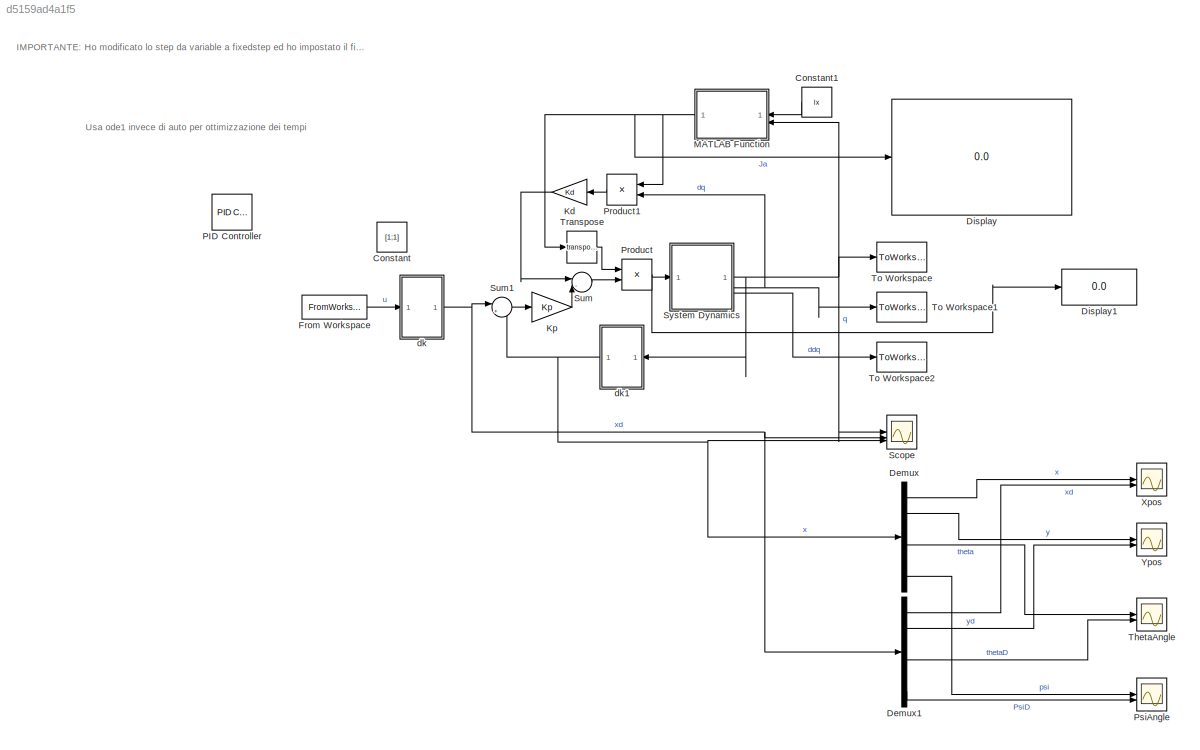
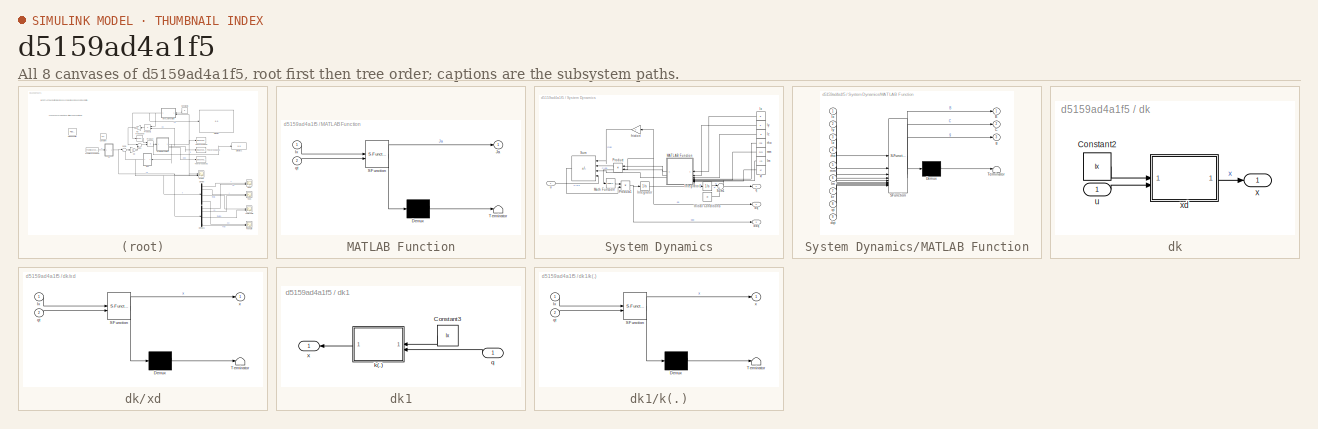
[diagram: thumbnail index - all 8 canvases of the model, root first then tree order]
MODEL slx_d5159ad4a1f5
KIND model
CONFIG AbsTol = auto
CONFIG EnableMultiTasking = off
CONFIG FixedStep = t_step
CONFIG MaxStep = auto
CONFIG MinStep = auto
CONFIG RelTol = 1e-3
CONFIG SampleTimeConstraint = Unconstrained
CONFIG SolverName = ode1
CONFIG StartTime = 0.0
CONFIG StopTime = Tf
BLOCK [Constant] Constant
  Value = [1;1]
BLOCK [Constant] Constant1
  Value = lx
BLOCK [Demux] Demux
  Outputs = 6
BLOCK [Demux] Demux1
  Outputs = 6
BLOCK [Display] Display
  Decimation = 1
BLOCK [Display] Display1
  Decimation = 1
BLOCK [FromWorkspace] From Workspace
  OutDataTypeStr = double
  SampleTime = t_step
  VariableName = [t', u]
BLOCK [Gain] Kd
  Gain = Kd
  Multiplication = Matrix(K*u)
BLOCK [Gain] Kp
  Gain = Kp
  Multiplication = Matrix(K*u)
BLOCK [SubSystem] MATLAB Function
  ErrorFcn = Stateflow.Translate.translate
  LibrarySourceBlock = simulink/User-Defined\nFunctions/MATLAB Function
  PermitHierarchicalResolution = ExplicitOnly
  SFBlockType = MATLAB Function
  TreatAsAtomicUnit = on
BLOCK [Demux] MATLAB Function/ Demux 
  Outputs = 1
BLOCK [S-Function] MATLAB Function/ SFunction 
  EnableBusSupport = on
  FunctionName = sf_sfun
  PortCounts = [2 2]
  SFcnIsStateOwnerBlock = off
  SFunctionDeploymentMode = off
  Tag = Stateflow S-Function 1
BLOCK [Terminator] MATLAB Function/ Terminator 
BLOCK [Outport] MATLAB Function/Ja
BLOCK [Inport] MATLAB Function/lx
BLOCK [Inport] MATLAB Function/qt
  Port = 2
BLOCK [Reference] PID Controller  REF=slpidlib/PID Controller
  LibrarySourceBlock = simulink/Continuous/PID Controller
  SourceBlock = slpidlib/PID Controller
  SourceType = PID 1dof
BLOCK [Product] Product
  Multiplication = Matrix(*)
BLOCK [Product] Product1
  Multiplication = Matrix(*)
BLOCK [Scope] PsiAngle
  Floating = off
  NumInputPorts = 2
  ScopeSpecificationString = Simulink.scopes.TimeScopeBlockCfg('CurrentConfiguration', extmgr.ConfigurationSet(extmgr.Configuration('Core','General UI',true),extmgr.Configuration('Core','Source UI',true),extmgr.Configuration('Sources','WiredSimulink',true,'DataLoggingVariableName','ScopeData4'),extmgr.Configuration('Visuals','Time Domain',true,'SerializedDisplays',{struct('MinYLimReal','-1.00000','MaxYLimReal','1.00000','YLab...<+1419ch>
BLOCK [Scope] Scope
  Floating = off
  NumInputPorts = 3
  ScopeSpecificationString = Simulink.scopes.TimeScopeBlockCfg('CurrentConfiguration', extmgr.ConfigurationSet(extmgr.Configuration('Core','General UI',true),extmgr.Configuration('Core','Source UI',true),extmgr.Configuration('Sources','WiredSimulink',true),extmgr.Configuration('Visuals','Time Domain',true,'SerializedDisplays',{struct('MinYLimReal','-3.53429','MaxYLimReal','0.3927','YLabelReal','','MinYLimMag','0.00000','MaxYL...<+1807ch>
BLOCK [Sum] Sum
  Inputs = |-+
BLOCK [Sum] Sum1
  Inputs = |+-
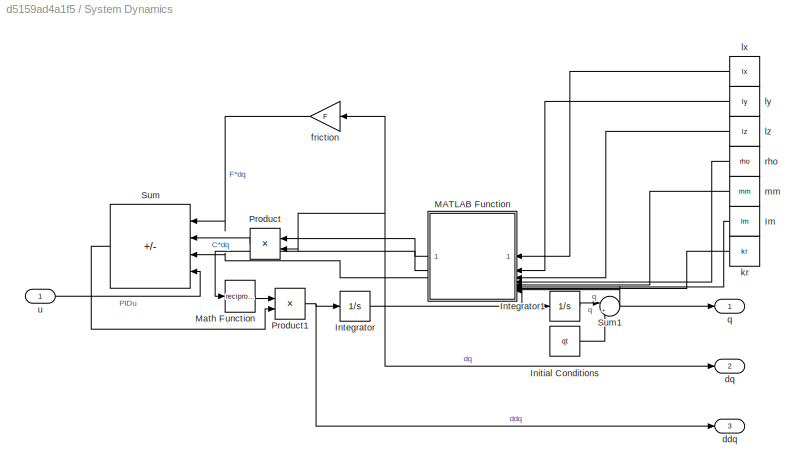
BLOCK [SubSystem] System Dynamics
BLOCK [Constant] System Dynamics/Im
  Value = Im
BLOCK [Constant] System Dynamics/Initial Conditions
  Value = qt
BLOCK [Integrator] System Dynamics/Integrator
  InitialCondition = [0; 0]
BLOCK [Integrator] System Dynamics/Integrator1
  InitialCondition = [0;0]
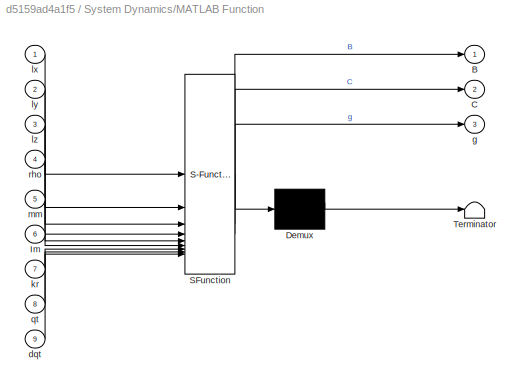
BLOCK [SubSystem] System Dynamics/MATLAB Function
  ErrorFcn = Stateflow.Translate.translate
  LibrarySourceBlock = simulink/User-Defined\nFunctions/MATLAB Function
  PermitHierarchicalResolution = ExplicitOnly
  SFBlockType = MATLAB Function
  TreatAsAtomicUnit = on
BLOCK [Demux] System Dynamics/MATLAB Function/ Demux 
  Outputs = 1
BLOCK [S-Function] System Dynamics/MATLAB Function/ SFunction 
  EnableBusSupport = on
  FunctionName = sf_sfun
  PortCounts = [9 4]
  SFcnIsStateOwnerBlock = off
  SFunctionDeploymentMode = off
  Tag = Stateflow S-Function 2
BLOCK [Terminator] System Dynamics/MATLAB Function/ Terminator 
BLOCK [Outport] System Dynamics/MATLAB Function/B
BLOCK [Outport] System Dynamics/MATLAB Function/C
  Port = 2
BLOCK [Inport] System Dynamics/MATLAB Function/Im
  Port = 6
BLOCK [Inport] System Dynamics/MATLAB Function/dqt
  Port = 9
BLOCK [Outport] System Dynamics/MATLAB Function/g
  Port = 3
BLOCK [Inport] System Dynamics/MATLAB Function/kr
  Port = 7
BLOCK [Inport] System Dynamics/MATLAB Function/lx
BLOCK [Inport] System Dynamics/MATLAB Function/ly
  Port = 2
BLOCK [Inport] System Dynamics/MATLAB Function/lz
  Port = 3
BLOCK [Inport] System Dynamics/MATLAB Function/mm
  Port = 5
BLOCK [Inport] System Dynamics/MATLAB Function/qt
  Port = 8
BLOCK [Inport] System Dynamics/MATLAB Function/rho
  Port = 4
BLOCK [Math] System Dynamics/Math Function
  Operator = reciprocal
BLOCK [Product] System Dynamics/Product
  Multiplication = Matrix(*)
BLOCK [Product] System Dynamics/Product1
  Multiplication = Matrix(*)
BLOCK [Sum] System Dynamics/Sum
  IconShape = rectangular
  Inputs = |---+
BLOCK [Sum] System Dynamics/Sum1
  Inputs = |++
BLOCK [Outport] System Dynamics/ddq
  Port = 3
BLOCK [Outport] System Dynamics/dq
  Port = 2
BLOCK [Gain] System Dynamics/friction
  Gain = F
  Multiplication = Matrix(K*u)
BLOCK [Constant] System Dynamics/kr
  Value = kr
BLOCK [Constant] System Dynamics/lx
  Value = lx
BLOCK [Constant] System Dynamics/ly
  Value = ly
BLOCK [Constant] System Dynamics/lz
  Value = lz
BLOCK [Constant] System Dynamics/mm
  Value = mm
BLOCK [Outport] System Dynamics/q
BLOCK [Constant] System Dynamics/rho
  Value = rho
BLOCK [Inport] System Dynamics/u
BLOCK [Scope] ThetaAngle
  Floating = off
  NumInputPorts = 2
  ScopeSpecificationString = Simulink.scopes.TimeScopeBlockCfg('CurrentConfiguration', extmgr.ConfigurationSet(extmgr.Configuration('Core','General UI',true),extmgr.Configuration('Core','Source UI',true),extmgr.Configuration('Sources','WiredSimulink',true,'DataLoggingVariableName','ScopeData3'),extmgr.Configuration('Visuals','Time Domain',true,'SerializedDisplays',{struct('MinYLimReal','-3.55967','MaxYLimReal','0.62112','YLab...<+1420ch>
BLOCK [ToWorkspace] To Workspace
  MaxDataPoints = inf
  SampleTime = -1
  Save2DSignal = 2-D array (concatenate along first dimension)
  VariableName = q
BLOCK [ToWorkspace] To Workspace1
  MaxDataPoints = inf
  SampleTime = -1
  Save2DSignal = 2-D array (concatenate along first dimension)
  VariableName = dq
BLOCK [ToWorkspace] To Workspace2
  MaxDataPoints = inf
  SampleTime = -1
  Save2DSignal = 2-D array (concatenate along first dimension)
  VariableName = ddq
BLOCK [Math] Transpose
  Operator = transpose
BLOCK [Scope] Xpos
  Floating = off
  NumInputPorts = 2
  ScopeSpecificationString = Simulink.scopes.TimeScopeBlockCfg('CurrentConfiguration', extmgr.ConfigurationSet(extmgr.Configuration('Core','General UI',true),extmgr.Configuration('Core','Source UI',true),extmgr.Configuration('Sources','WiredSimulink',true,'DataLoggingVariableName','ScopeData1'),extmgr.Configuration('Visuals','Time Domain',true,'SerializedDisplays',{struct('MinYLimReal','-0.26024','MaxYLimReal','0.34212','YLab...<+1432ch>
BLOCK [Scope] Ypos
  Floating = off
  NumInputPorts = 2
  ScopeSpecificationString = Simulink.scopes.TimeScopeBlockCfg('CurrentConfiguration', extmgr.ConfigurationSet(extmgr.Configuration('Core','General UI',true),extmgr.Configuration('Core','Source UI',true),extmgr.Configuration('Sources','WiredSimulink',true,'DataLoggingVariableName','ScopeData2'),extmgr.Configuration('Visuals','Time Domain',true,'SerializedDisplays',{struct('MinYLimReal','-0.45034','MaxYLimReal','0.27226','YLab...<+1412ch>
BLOCK [SubSystem] dk
BLOCK [Constant] dk/Constant2
  Value = lx
BLOCK [Inport] dk/u
BLOCK [Outport] dk/x
BLOCK [SubSystem] dk/xd
  ErrorFcn = Stateflow.Translate.translate
  LibrarySourceBlock = simulink/User-Defined\nFunctions/MATLAB Function
  PermitHierarchicalResolution = ExplicitOnly
  SFBlockType = MATLAB Function
  TreatAsAtomicUnit = on
BLOCK [Demux] dk/xd/ Demux 
  Outputs = 1
BLOCK [S-Function] dk/xd/ SFunction 
  EnableBusSupport = on
  FunctionName = sf_sfun
  PortCounts = [2 2]
  SFcnIsStateOwnerBlock = off
  SFunctionDeploymentMode = off
  Tag = Stateflow S-Function 4
BLOCK [Terminator] dk/xd/ Terminator 
BLOCK [Inport] dk/xd/lx
BLOCK [Inport] dk/xd/qt
  Port = 2
BLOCK [Outport] dk/xd/x
BLOCK [SubSystem] dk1
BLOCK [Constant] dk1/Constant3
  Value = lx
BLOCK [SubSystem] dk1/k(.)
  ErrorFcn = Stateflow.Translate.translate
  LibrarySourceBlock = simulink/User-Defined\nFunctions/MATLAB Function
  PermitHierarchicalResolution = ExplicitOnly
  SFBlockType = MATLAB Function
  TreatAsAtomicUnit = on
BLOCK [Demux] dk1/k(.)/ Demux 
  Outputs = 1
BLOCK [S-Function] dk1/k(.)/ SFunction 
  EnableBusSupport = on
  FunctionName = sf_sfun
  PortCounts = [2 2]
  SFcnIsStateOwnerBlock = off
  SFunctionDeploymentMode = off
  Tag = Stateflow S-Function 3
BLOCK [Terminator] dk1/k(.)/ Terminator 
BLOCK [Inport] dk1/k(.)/lx
BLOCK [Inport] dk1/k(.)/qt
  Port = 2
BLOCK [Outport] dk1/k(.)/x
BLOCK [Inport] dk1/q
BLOCK [Outport] dk1/x
ANNOTATION (root): IMPORTANTE: Ho modificato lo step da variable a fixedstep ed ho impostato il fixed step size a t_step
ANNOTATION (root): Usa ode1 invece di auto per ottimizzazione dei tempi
LINE Constant1:1 -> MATLAB Function:1
LINE Demux1:1 -> Xpos:2
LINE Demux1:2 -> Ypos:2
LINE Demux1:4 -> ThetaAngle:2
LINE Demux1:6 -> PsiAngle:2
LINE Demux:1 -> Xpos:1
LINE Demux:2 -> Ypos:1
LINE Demux:4 -> ThetaAngle:1
LINE Demux:6 -> PsiAngle:1
LINE From Workspace:1 -> dk:1
LINE Kd:1 -> Sum:1
LINE Kp:1 -> Sum:2
NET MATLAB Function:1 -> Display:1, Product1:1, Transpose:1
LINE Product1:1 -> Kd:1
NET Product:1 -> Display1:1, System Dynamics:1
LINE Sum1:1 -> Kp:1
LINE Sum:1 -> Product:2
LINE System Dynamics/Im:1 -> System Dynamics/MATLAB Function:6
LINE System Dynamics/Initial Conditions:1 -> System Dynamics/Sum1:2
LINE System Dynamics/Integrator1:1 -> System Dynamics/Sum1:1
NET System Dynamics/Integrator:1 -> System Dynamics/Integrator1:1, System Dynamics/MATLAB Function:9, System Dynamics/Product:2, System Dynamics/dq:1, System Dynamics/friction:1
LINE System Dynamics/MATLAB Function:1 -> System Dynamics/Math Function:1
LINE System Dynamics/MATLAB Function:2 -> System Dynamics/Product:1
LINE System Dynamics/MATLAB Function:3 -> System Dynamics/Sum:3
LINE System Dynamics/Math Function:1 -> System Dynamics/Product1:1
NET System Dynamics/Product1:1 -> System Dynamics/Integrator:1, System Dynamics/ddq:1
LINE System Dynamics/Product:1 -> System Dynamics/Sum:2
NET System Dynamics/Sum1:1 -> System Dynamics/MATLAB Function:8, System Dynamics/q:1
LINE System Dynamics/Sum:1 -> System Dynamics/Product1:2
LINE System Dynamics/friction:1 -> System Dynamics/Sum:1
LINE System Dynamics/kr:1 -> System Dynamics/MATLAB Function:7
LINE System Dynamics/lx:1 -> System Dynamics/MATLAB Function:1
LINE System Dynamics/ly:1 -> System Dynamics/MATLAB Function:2
LINE System Dynamics/lz:1 -> System Dynamics/MATLAB Function:3
LINE System Dynamics/mm:1 -> System Dynamics/MATLAB Function:5
LINE System Dynamics/rho:1 -> System Dynamics/MATLAB Function:4
LINE System Dynamics/u:1 -> System Dynamics/Sum:4
NET System Dynamics:1 -> MATLAB Function:2, Scope:1, To Workspace:1, dk1:1
NET System Dynamics:2 -> Product1:2, To Workspace1:1
LINE System Dynamics:3 -> To Workspace2:1
LINE Transpose:1 -> Product:1
LINE dk/Constant2:1 -> dk/xd:1
LINE dk/u:1 -> dk/xd:2
LINE dk/xd:1 -> dk/x:1
LINE dk1/Constant3:1 -> dk1/k(.):1
LINE dk1/k(.):1 -> dk1/x:1
LINE dk1/q:1 -> dk1/k(.):2
NET dk1:1 -> Demux:1, Scope:3, Sum1:2
NET dk:1 -> Demux1:1, Scope:2, Sum1:1
note: NET lines group one-source signal fan-out (src -> all destinations, sorted); 1:1 wires keep LINE
CHART MATLAB Function states=1 transitions=1
  STATE_LABEL 'eML_blk_kernel()'
  STATE_LABEL 'SCRIPT:\nfunction Ja = fcn(lx, qt)\ncoder.extrinsic("jacobianFnc");\nJa = zeros(6,2);\nJa = jacobianFnc(lx, qt);\n'
CHART System Dynamics/MATLAB Function states=1 transitions=1
  STATE_LABEL 'eML_blk_kernel()'
  STATE_LABEL "SCRIPT:\nfunction [B, C, g] = fcn(lx, ly, lz, rho, mm, Im, kr, qt, dqt)\ncoder.extrinsic('generateBCg');\nB = zeros(2);\nC = zeros(2);\ng = zeros(2,1);\n[B, C, g] = generateBCg(lx, ly, lz, rho, mm, Im, kr, qt, dqt);"
CHART dk1/k(.) states=1 transitions=1
  STATE_LABEL 'eML_blk_kernel()'
  STATE_LABEL 'SCRIPT:\nfunction x = fcn(lx, qt)\ncoder.extrinsic("directkinematics")\nx = zeros(6,1);\nx = directkinematics(lx, qt);'
CHART dk/xd states=1 transitions=1
  STATE_LABEL 'eML_blk_kernel()'
  STATE_LABEL 'SCRIPT:\nfunction x = fcn(lx, qt)\ncoder.extrinsic("directkinematics")\nx = zeros(6,1);\nx = directkinematics(lx, qt);'
CHART  states=0 transitions=0
CHART  states=0 transitions=0
CHART  states=0 transitions=0
CHART  states=0 transitions=0
